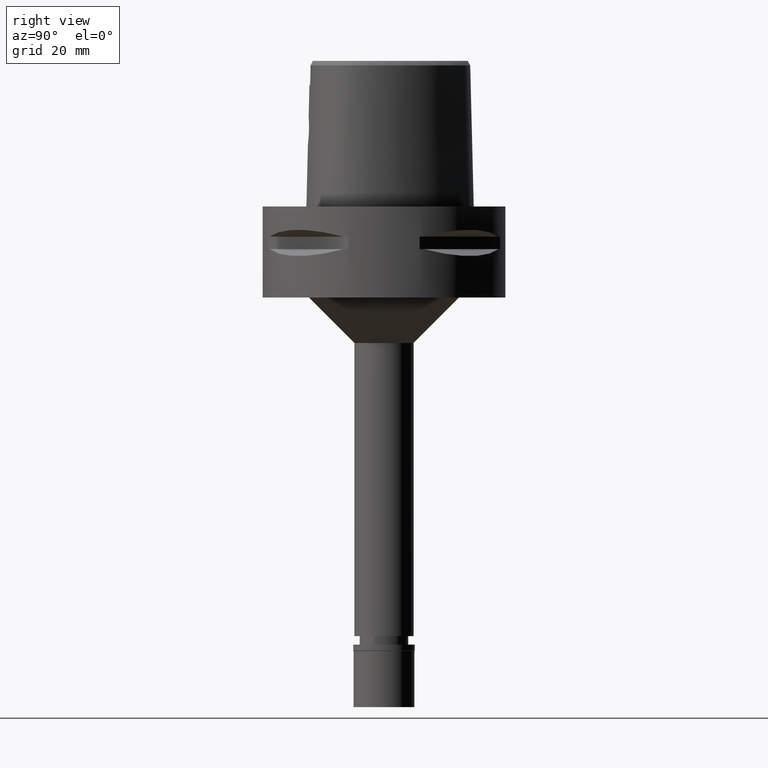
[diagram: clean part render]
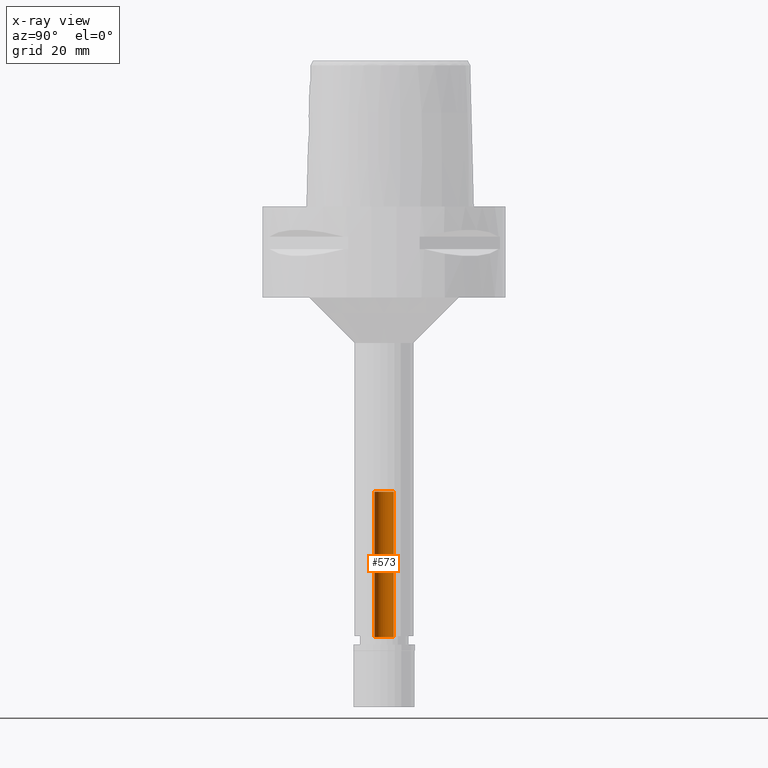
[diagram: x-ray — body ghosted, one internal face saturated and labeled with its STEP entity id]
A machine part, right view, then the same camera in x-ray: the body is ghosted and one INTERNAL B-rep face — a face not visible from any outside direction — is saturated and labeled: STEP entity #573.
In plain terms, the highlighted cylindrical surface (edge-blend (fillet) strip) has radius 3.2 mm, axis along (0, 0, -1).
Its self-contained STEP definition (entity closure, byte-faithful):
#70 = ORIENTED_EDGE ( 'NONE', *, *, #210, .T. ) ;
#135 = DIRECTION ( 'NONE',  ( 0.0000000000000000000, 0.0000000000000000000, -1.000000000000000000 ) ) ;
#190 = CARTESIAN_POINT ( 'NONE',  ( 0.0000000000000000000, 1.320781572880000066E-14, -94.00000000000000000 ) ) ;
#210 = EDGE_CURVE ( 'NONE', #3147, #2179, #253, .T. ) ;
#253 = CIRCLE ( 'NONE', #3830, 3.200000000000000178 ) ;
#389 = ORIENTED_EDGE ( 'NONE', *, *, #4838, .T. ) ;
#492 = CYLINDRICAL_SURFACE ( 'NONE', #1855, 3.200000000000000178 ) ;
#573 = ADVANCED_FACE ( 'NONE', ( #4730 ), #492, .F. ) ;
#640 = DIRECTION ( 'NONE',  ( 0.0000000000000000000, 0.0000000000000000000, 1.000000000000000000 ) ) ;
#888 = DIRECTION ( 'NONE',  ( 0.0000000000000000000, 0.0000000000000000000, 1.000000000000000000 ) ) ;
#971 = CARTESIAN_POINT ( 'NONE',  ( 0.0000000000000000000, 1.320781572880000066E-14, 7.849999999999999645 ) ) ;
#1022 = VERTEX_POINT ( 'NONE', #4971 ) ;
#1295 = CARTESIAN_POINT ( 'NONE',  ( 0.0000000000000000000, -3.200000000000000178, -142.0000000000000000 ) ) ;
#1358 = DIRECTION ( 'NONE',  ( 0.0000000000000000000, -1.000000000000000000, 0.0000000000000000000 ) ) ;
#1381 = DIRECTION ( 'NONE',  ( 0.0000000000000000000, 1.000000000000000000, 0.0000000000000000000 ) ) ;
#1837 = EDGE_CURVE ( 'NONE', #3479, #2179, #2238, .T. ) ;
#1855 = AXIS2_PLACEMENT_3D ( 'NONE', #971, #135, #2156 ) ;
#1872 = EDGE_LOOP ( 'NONE', ( #70, #2214, #389, #3642 ) ) ;
#2132 = EDGE_CURVE ( 'NONE', #1022, #3147, #4799, .T. ) ;
#2156 = DIRECTION ( 'NONE',  ( 0.0000000000000000000, -1.000000000000000000, 0.0000000000000000000 ) ) ;
#2179 = VERTEX_POINT ( 'NONE', #2532 ) ;
#2214 = ORIENTED_EDGE ( 'NONE', *, *, #1837, .F. ) ;
#2238 = LINE ( 'NONE', #4294, #3959 ) ;
#2314 = DIRECTION ( 'NONE',  ( 0.0000000000000000000, 0.0000000000000000000, 1.000000000000000000 ) ) ;
#2532 = CARTESIAN_POINT ( 'NONE',  ( 0.0000000000000000000, -3.200000000000000178, -94.00000000000000000 ) ) ;
#2907 = DIRECTION ( 'NONE',  ( 0.0000000000000000000, 0.0000000000000000000, -1.000000000000000000 ) ) ;
#3117 = VECTOR ( 'NONE', #888, 1000.000000000000000 ) ;
#3147 = VERTEX_POINT ( 'NONE', #5068 ) ;
#3479 = VERTEX_POINT ( 'NONE', #1295 ) ;
#3642 = ORIENTED_EDGE ( 'NONE', *, *, #2132, .T. ) ;
#3737 = CARTESIAN_POINT ( 'NONE',  ( 0.0000000000000000000, 1.320781572880000066E-14, -142.0000000000000000 ) ) ;
#3830 = AXIS2_PLACEMENT_3D ( 'NONE', #190, #640, #1381 ) ;
#3914 = CIRCLE ( 'NONE', #4587, 3.200000000000000178 ) ;
#3959 = VECTOR ( 'NONE', #2314, 1000.000000000000000 ) ;
#4294 = CARTESIAN_POINT ( 'NONE',  ( 0.0000000000000000000, -3.200000000000000178, -142.0000000000000000 ) ) ;
#4454 = CARTESIAN_POINT ( 'NONE',  ( 0.0000000000000000000, 3.200000000000000178, -142.0000000000000000 ) ) ;
#4587 = AXIS2_PLACEMENT_3D ( 'NONE', #3737, #2907, #1358 ) ;
#4730 = FACE_OUTER_BOUND ( 'NONE', #1872, .T. ) ;
#4799 = LINE ( 'NONE', #4454, #3117 ) ;
#4838 = EDGE_CURVE ( 'NONE', #3479, #1022, #3914, .T. ) ;
#4971 = CARTESIAN_POINT ( 'NONE',  ( 0.0000000000000000000, 3.200000000000000178, -142.0000000000000000 ) ) ;
#5068 = CARTESIAN_POINT ( 'NONE',  ( 0.0000000000000000000, 3.200000000000000178, -94.00000000000000000 ) ) ;